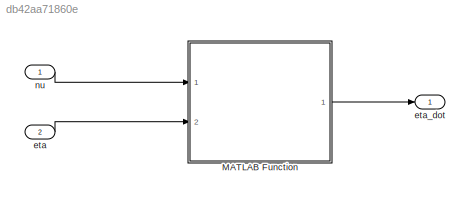
MODEL slx_db42aa71860e
KIND model
CONFIG AbsTol = auto
CONFIG EnableMultiTasking = off
CONFIG FixedStep = auto
CONFIG MaxStep = auto
CONFIG MinStep = auto
CONFIG RelTol = 1e-3
CONFIG SampleTimeConstraint = Unconstrained
CONFIG Solver = VariableStepAuto
CONFIG SolverName = VariableStepAuto
CONFIG StartTime = 0.0
CONFIG StopTime = 10.0
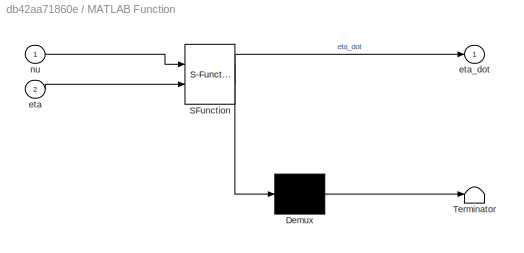
BLOCK [SubSystem] MATLAB Function
  ErrorFcn = Stateflow.Translate.translate
  PermitHierarchicalResolution = ExplicitOnly
  Ports = [2, 1]
  RequestExecContextInheritance = off
  SFBlockType = MATLAB Function
  TreatAsAtomicUnit = on
BLOCK [Demux] MATLAB Function/ Demux 
  Outputs = 1
  Ports = [1, 1]
BLOCK [S-Function] MATLAB Function/ SFunction 
  EnableBusSupport = on
  FunctionName = sf_sfun
  PortCounts = [2 2]
  Ports = [2, 2]
  SFcnIsStateOwnerBlock = off
  SFunctionDeploymentMode = off
  Tag = Stateflow S-Function 2
BLOCK [Terminator] MATLAB Function/ Terminator 
BLOCK [Inport] MATLAB Function/eta
  IconDisplay = Port number
  Port = 2
BLOCK [Outport] MATLAB Function/eta_dot
  IconDisplay = Port number
  VectorParamsAs1DForOutWhenUnconnected = off
BLOCK [Inport] MATLAB Function/nu
  IconDisplay = Port number
BLOCK [Inport] eta
  IconDisplay = Port number
  Port = 2
BLOCK [Outport] eta_dot
  IconDisplay = Port number
  PortDimensions = 6
  VectorParamsAs1DForOutWhenUnconnected = off
BLOCK [Inport] nu
  IconDisplay = Port number
LINE MATLAB Function:1 -> eta_dot:1
LINE eta:1 -> MATLAB Function:2
LINE nu:1 -> MATLAB Function:1
CHART MATLAB Function states=1 transitions=1
  STATE_LABEL 'eML_blk_kernel()'
  STATE_LABEL 'SCRIPT:\nfunction eta_dot = frame_converter(nu, eta)\n\n% eta_dot = frame_converter(nu, eta) converts the nu vector into the \n% world frame to produce the time derivatives of the eta vector (which is \n% the position and orientation in the world frame)\n%\n\n% unpack eta\nphi = eta(4);      % roll angle              (rad)\ntheta = eta(5);    % pitch angle             (rad)\npsi = eta(6);      % yaw angle   ...<+592ch>'
